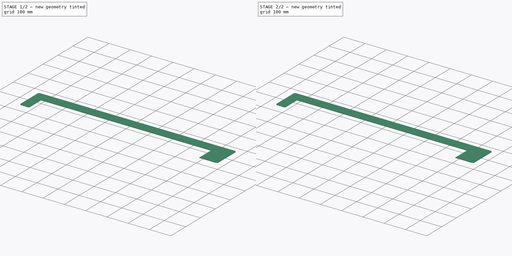
[diagram: build sequence overview — one tinted view per stage of 2, left to right]
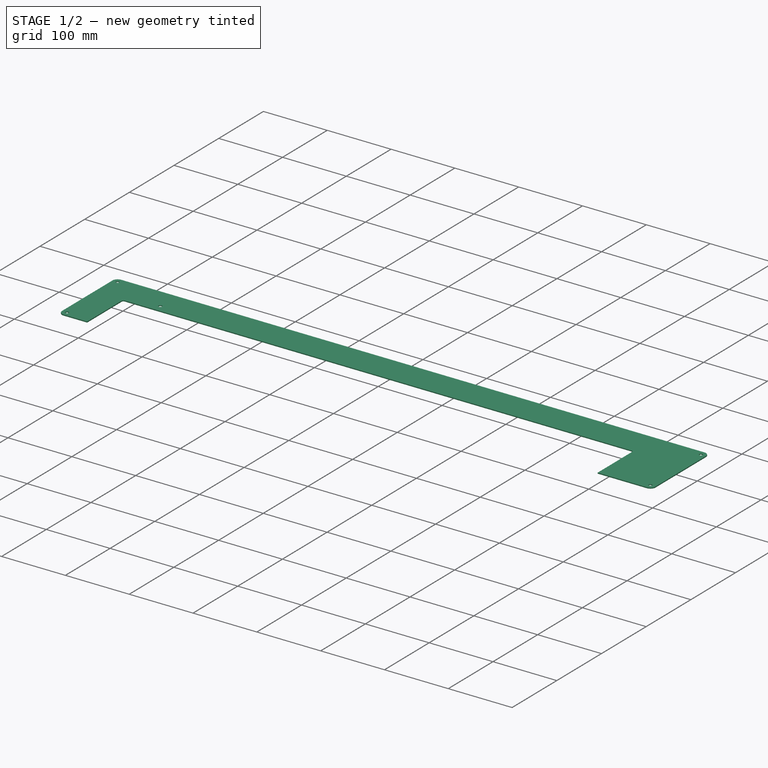
[diagram: stage 1 of 2 — iso view after this stage's code; geometry added in this stage tinted green]
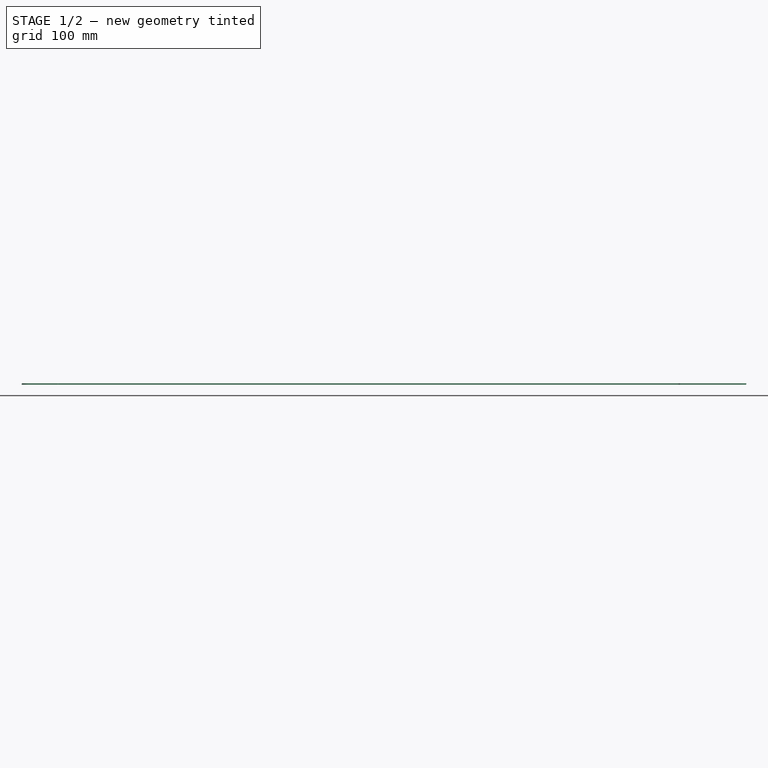
[diagram: stage 1 of 2 — front view after this stage's code; geometry added in this stage tinted green]
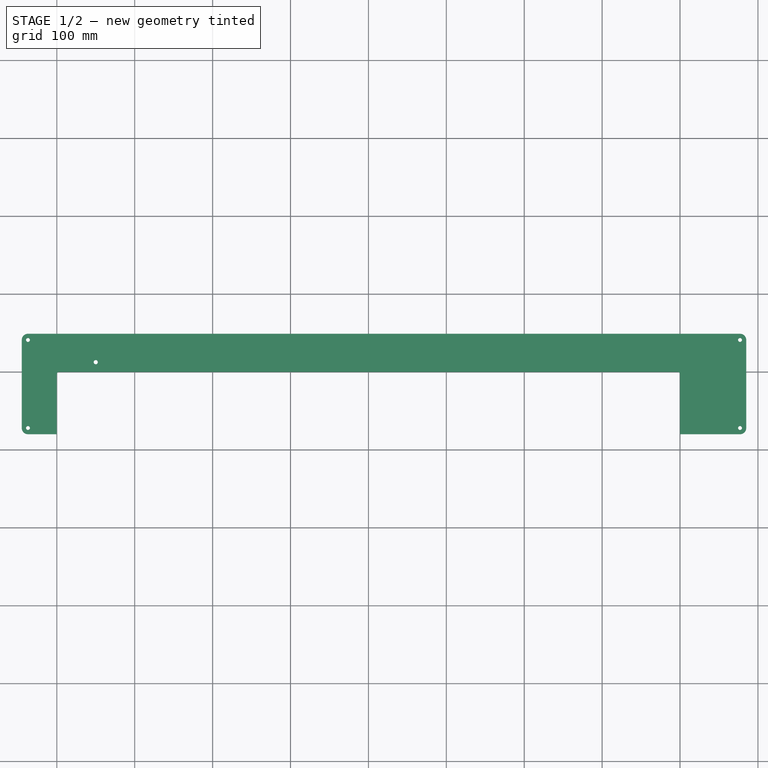
[diagram: stage 1 of 2 — top view after this stage's code; geometry added in this stage tinted green]
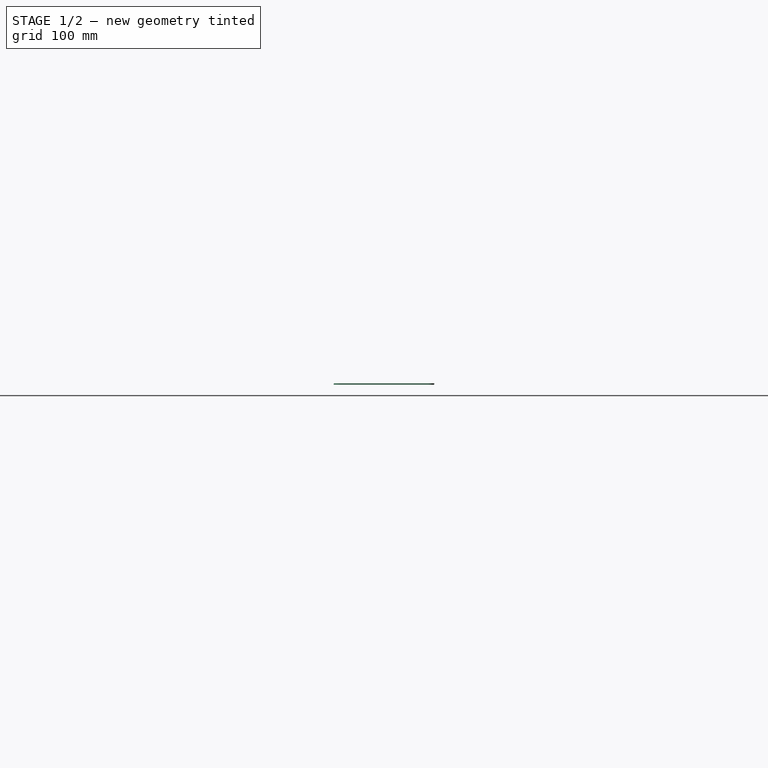
[diagram: stage 1 of 2 — right view after this stage's code; geometry added in this stage tinted green]
FCSTD DOCUMENT  (FreeCAD 0.21R38887 (Git))
Label: ЗащитаПраваяY
License: All rights reserved
LicenseURL: http://en.wikipedia.org/wiki/All_rights_reserved
objects: Sketcher::SketchObject×2, PartDesign::Pad×1, PartDesign::Hole×1, PartDesign::LinearPattern×1, PartDesign::Body×1
note: 14 computed .brp shape members not serialized (recipe doc carries the construction recipe); baked Part::Feature solids carry a one-line shape summary decoded from their .brp
EXTERNAL_REF file=ТаблицаПараметров.FCStd obj=Spreadsheet004

FEATURE [Sketcher::SketchObject] Sketch  label="Контур"
  ArcFitTolerance = 0
  ExternalBSplineMaxDegree = 0
  ExternalBSplineTolerance = 0
  FullyConstrained = true
  InternalTolerance = 1e-06
  InvalidShape = false
  MakeInternals = false
  MapMode = 5
  TreeRank = 0
  ValidateShape = false
  expr: Constraints[36] = <<ТаблицаПараметров>>#<<ЗащитаТабл>>.dimR4
  expr: Constraints[37] = <<ТаблицаПараметров>>#<<ЗащитаТабл>>.dimL2
  expr: Constraints[38] = <<ТаблицаПараметров>>#<<ЗащитаТабл>>.dimR2
  expr: Constraints[42] = <<ТаблицаПараметров>>#<<ЗащитаТабл>>.dimR1
  expr: Constraints[46] = <<ТаблицаПараметров>>#<<ЗащитаТабл>>.dimh2
  expr: Constraints[47] = <<ТаблицаПараметров>>#<<ЗащитаТабл>>.dimH1
  expr: Constraints[53] = <<ТаблицаПараметров>>#<<ЗащитаТабл>>.dimL1
  expr: Constraints[55] = <<ТаблицаПараметров>>#<<ЗащитаТабл>>.dimL1 + <<ТаблицаПараметров>>#<<ЗащитаТабл>>.dimL2 + <<ТаблицаПараметров>>#<<ЗащитаТабл>>.dimL3
  sketch-geometry (18):
    g0: LineSegment StartX=2.84e-14 StartY=-3 StartZ=0 EndX=2.84e-14 EndY=-80 EndZ=0
    g1: ArcOfCircle CenterX=3 CenterY=-3 CenterZ=0 NormalX=-1e-16 NormalY=0 NormalZ=1 AngleXU=-2e-16 Radius=3 StartAngle=1.5708 EndAngle=3.14159
    g2: LineSegment StartX=797 StartY=0 StartZ=0 EndX=3 EndY=0 EndZ=0
    g3: ArcOfCircle CenterX=797 CenterY=-3 CenterZ=0 NormalX=-1e-16 NormalY=0 NormalZ=1 AngleXU=-2e-16 Radius=3 StartAngle=-6.2e-15 EndAngle=1.5708
    g4: LineSegment StartX=800 StartY=-80 StartZ=0 EndX=800 EndY=-3 EndZ=0
    g5: LineSegment StartX=877 StartY=-80 StartZ=0 EndX=800 EndY=-80 EndZ=0
    g6: ArcOfCircle CenterX=877 CenterY=-72 CenterZ=0 NormalX=-1e-16 NormalY=0 NormalZ=1 AngleXU=-2e-16 Radius=8 StartAngle=4.71239 EndAngle=6.28319
    g7: LineSegment StartX=885 StartY=41 StartZ=0 EndX=885 EndY=-72 EndZ=0
    g8: ArcOfCircle CenterX=877 CenterY=41 CenterZ=0 NormalX=-1e-16 NormalY=0 NormalZ=1 AngleXU=-2e-16 Radius=8 StartAngle=3.05e-13 EndAngle=1.5708
    g9: LineSegment StartX=-37 StartY=49 StartZ=0 EndX=877 EndY=49 EndZ=0
    g10: ArcOfCircle CenterX=-37 CenterY=41 CenterZ=0 NormalX=-1e-16 NormalY=0 NormalZ=1 AngleXU=-2e-16 Radius=8 StartAngle=1.5708 EndAngle=3.14159
    g11: LineSegment StartX=-45 StartY=-72 StartZ=0 EndX=-45 EndY=41 EndZ=0
    g12: ArcOfCircle CenterX=-37 CenterY=-72 CenterZ=0 NormalX=-1e-16 NormalY=0 NormalZ=1 AngleXU=-2e-16 Radius=8 StartAngle=3.14159 EndAngle=4.71239
    g13: Circle CenterX=-37 CenterY=41 CenterZ=0 NormalX=0 NormalY=0 NormalZ=1 AngleXU=0 Radius=2.5
    g14: Circle CenterX=-37 CenterY=-72 CenterZ=0 NormalX=0 NormalY=0 NormalZ=1 AngleXU=0 Radius=2.5
    g15: Circle CenterX=877 CenterY=-72 CenterZ=0 NormalX=0 NormalY=0 NormalZ=1 AngleXU=0 Radius=2.5
    g16: Circle CenterX=877 CenterY=41 CenterZ=0 NormalX=0 NormalY=0 NormalZ=1 AngleXU=0 Radius=2.5
    g17: LineSegment StartX=-37 StartY=-80 StartZ=0 EndX=2.84e-14 EndY=-80 EndZ=0
  constraints (56):
    c: Vertical(g0)
    c: Coincident(g0,g1)
    c: Coincident(g1,g2)
    c: Coincident(g2,g3)
    c: Coincident(g3,g4)
    c: Vertical(g4)
    c: Coincident(g5,g6)
    c: Coincident(g6,g7)
    c: Vertical(g7)
    c: Coincident(g7,g8)
    c: Coincident(g8,g9)
    c: Coincident(g9,g10)
    c: Coincident(g10,g11)
    c: Vertical(g11)
    c: Coincident(g11,g12)
    c: Horizontal(g10,g10)
    c: Horizontal(g10,g8)
    c: Horizontal(g8,g7)
    c: Horizontal(g11,g12)
    c: Horizontal(g12,g6)
    c: Horizontal(g6,g6)
    c: Vertical(g12,g12)
    c: Vertical(g12,g10)
    c: Vertical(g10,g9)
    c: Vertical(g5,g6)
    c: Vertical(g6,g8)
    c: Vertical(g8,g8)
    c: Horizontal(g0,g1)
    c: Horizontal(g1,g3)
    c: Horizontal(g3,g3)
    c: Horizontal(g0,g4)
    c: Horizontal(g5)
    c: Horizontal(g9)
    c: Horizontal(g2)
    c: Vertical(g3,g2)
    c: Vertical(g1,g1)
    c: Radius(g3) = 3
    c: DistanceX(g0,g3) = 800
    c: Radius(g13) = 2.5
    c: Equal(g13,g14)
    c: Equal(g13,g15)
    c: Equal(g13,g16)
    c: Radius(g10) = 8
    c: Coincident(g12,g14)
    c: Coincident(g15,g6)
    c: Coincident(g8,g16)
    c: DistanceY(g5,g2) = 80
    c: DistanceY(g5,g8) = 129
    c: Coincident(g10,g13)
    c: PointOnObject(g1,g-1)
    c: PointOnObject(g0,g-2)
    c: Coincident(g17,g0)
    c: Coincident(g5,g4)
    c: DistanceX(g11,g0) = 45
    c: Coincident(g17,g12)
    c: DistanceX(g10,g7) = 930
FEATURE [Sketcher::SketchObject] Sketch001  label="КреплЗащиты"
  ArcFitTolerance = 0
  ExternalBSplineMaxDegree = 0
  ExternalBSplineTolerance = 0
  FullyConstrained = true
  InternalTolerance = 1e-06
  InvalidShape = false
  MakeInternals = false
  MapMode = 5
  Placement = pos=(0,0,2) rot=(0,0,1;0rad)
  TreeRank = 0
  ValidateShape = false
  expr: Constraints[0] = <<ТаблицаПараметров>>#<<ЗащитаТабл>>.dimR3
  expr: Constraints[1] = <<ТаблицаПараметров>>#<<ЗащитаТабл>>.dimH3
  expr: Constraints[2] = <<ТаблицаПараметров>>#<<ЗащитаТабл>>.dimL6
  sketch-geometry (1):
    g0: Circle CenterX=50 CenterY=12.5 CenterZ=0 NormalX=0 NormalY=0 NormalZ=1 AngleXU=0 Radius=2.65
  constraints (3):
    c: Radius(g0) = 2.65
    c: DistanceY(g-1,g0) = 12.5
    c: DistanceX(g-1,g0) = 50
FEATURE [PartDesign::Pad] Pad
  AddSubType = 0
  AlongSketchNormal = false
  AutoTaperInnerAngle = false
  CheckUpToFaceLimits = true
  ClaimChildren = false
  Direction = (0,0,1)
  Fit = 0
  FitJoin = 0
  InnerFit = 0
  InnerFitJoin = 0
  InvalidShape = false
  Length = 1.5
  Length2 = 100
  NewSolid = false
  Profile = -> Sketch
  Suppress = false
  TaperInnerAngle = 0
  TaperInnerAngleRev = 0
  TreeRank = 0
  Type = 0
  ValidateShape = true
  _ProfileBasedVersion = 0
  expr: Length = <<ТаблицаПараметров>>#<<ЗащитаТабл>>.toldhinZashita
FEATURE [PartDesign::Hole] Hole
  AddSubType = 1
  BaseFeature = -> Pad
  ClaimChildren = false
  CustomThreadClearance = 0
  Depth = 25
  DepthType = 0
  Diameter = 5.3
  DrillForDepth = false
  DrillPoint = 1
  DrillPointAngle = 118
  Fit = 0
  FitJoin = 0
  HoleCutCountersinkAngle = 90
  HoleCutCustomValues = false
  HoleCutDepth = 0
  HoleCutDiameter = 6.1
  HoleCutType = 0
  InnerFit = 0
  InnerFitJoin = 0
  InvalidShape = false
  ModelThread = false
  NewSolid = false
  Profile = -> Sketch001
  Suppress = false
  Tapered = false
  TaperedAngle = 90
  ThreadClass = 0
  ThreadDepth = 23.5
  ThreadDepthType = 0
  ThreadDirection = 0
  ThreadFit = 0
  ThreadSize = 0
  ThreadType = 0
  Threaded = false
  TreeRank = 0
  UseCustomThreadClearance = false
  ValidateShape = true
  _ProfileBasedVersion = 0
  expr: Diameter = <<ТаблицаПараметров>>#<<ЗащитаТабл>>.dimR3 * 2
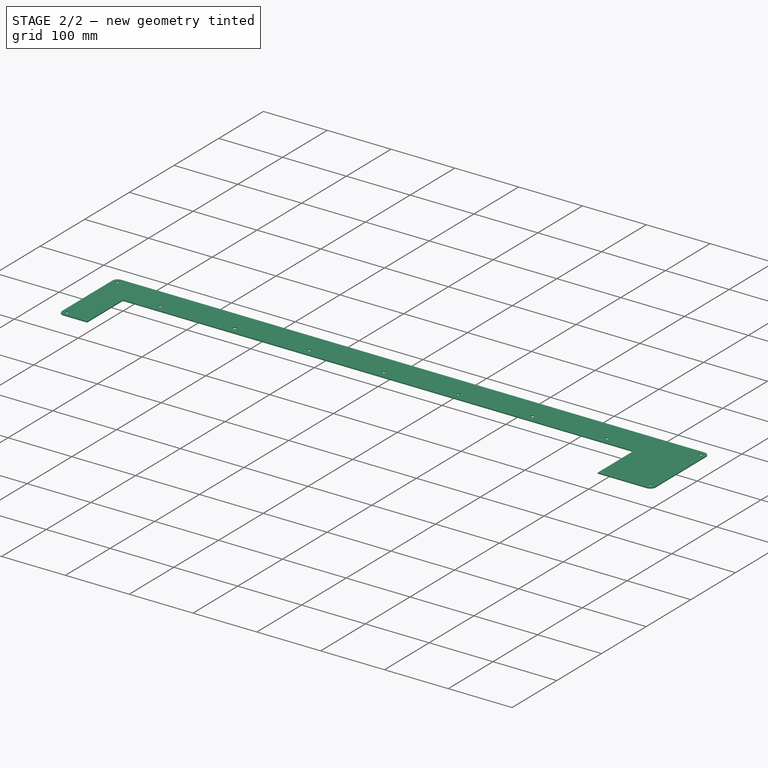
[diagram: stage 2 of 2 — iso view after this stage's code; geometry added in this stage tinted green]
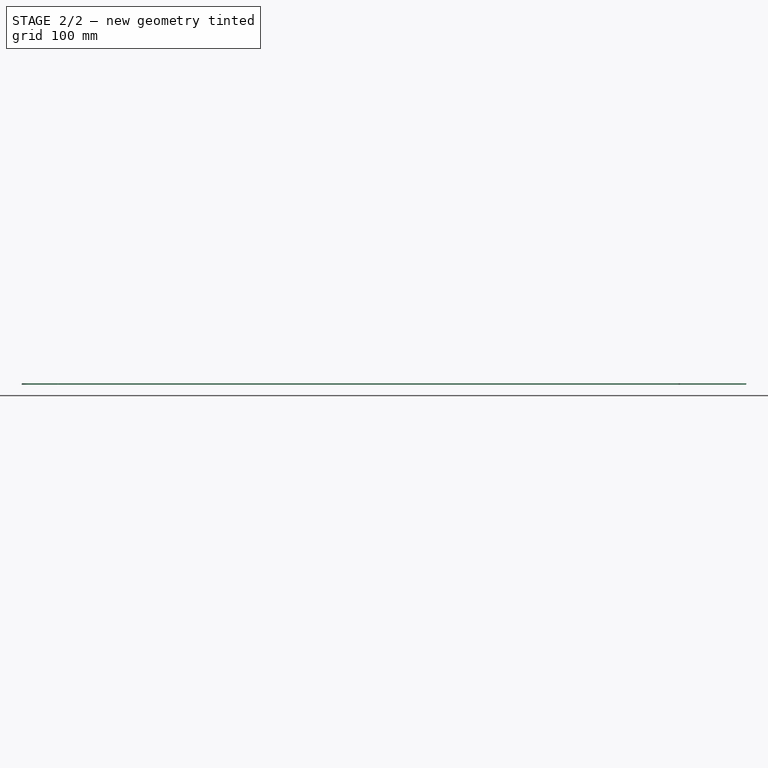
[diagram: stage 2 of 2 — front view after this stage's code; geometry added in this stage tinted green]
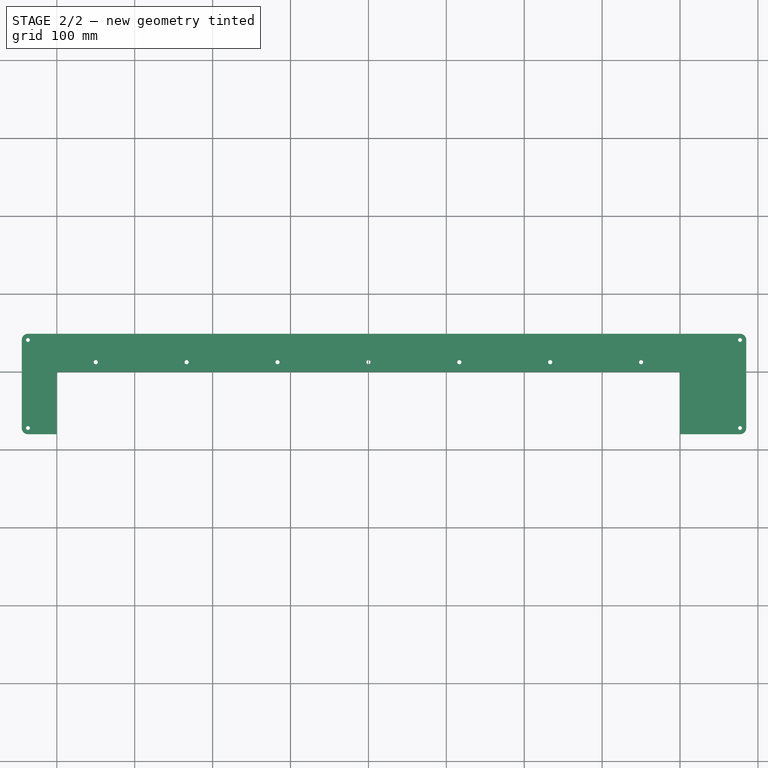
[diagram: stage 2 of 2 — top view after this stage's code; geometry added in this stage tinted green]
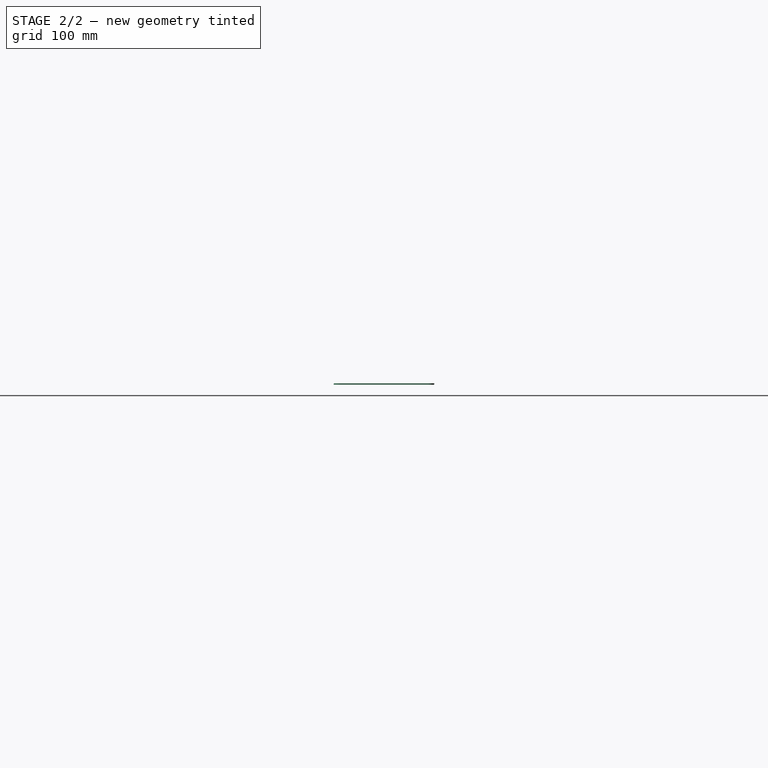
[diagram: stage 2 of 2 — right view after this stage's code; geometry added in this stage tinted green]
FEATURE [PartDesign::LinearPattern] LinearPattern
  AddSubType = 0
  BaseFeature = -> Hole
  CopyShape = false
  Direction = -> Sketch001 [H_Axis]
  InvalidShape = false
  Length = 700
  NewSolid = false
  Occurrences = 7
  OriginalSubs = -> [Hole]
  Originals = -> [Hole]
  ParallelTransform = true
  SubTransform = true
  Suppress = false
  TreeRank = 0
  ValidateShape = true
  _Siblings = -> [Hole,Pad]
  _Version = 0
  expr: Length = <<ТаблицаПараметров>>#<<ЗащитаТабл>>.dimL5
  expr: Occurrences = <<ТаблицаПараметров>>#<<ЗащитаТабл>>.num1
FEATURE [PartDesign::Body] Body  label="ЗащитаСправаY"
  AutoGroupSolids = true
  ClaimAllChildren = false
  ExportMode = 0
  Group = -> [Sketch,Sketch001,Pad,Hole,LinearPattern]
  InvalidShape = false
  Origin = -> Origin
  Tip = -> LinearPattern
  TreeRank = 0
  ValidateShape = false
  _ExportChildren = -> [LinearPattern]
  _GroupVersion = 1
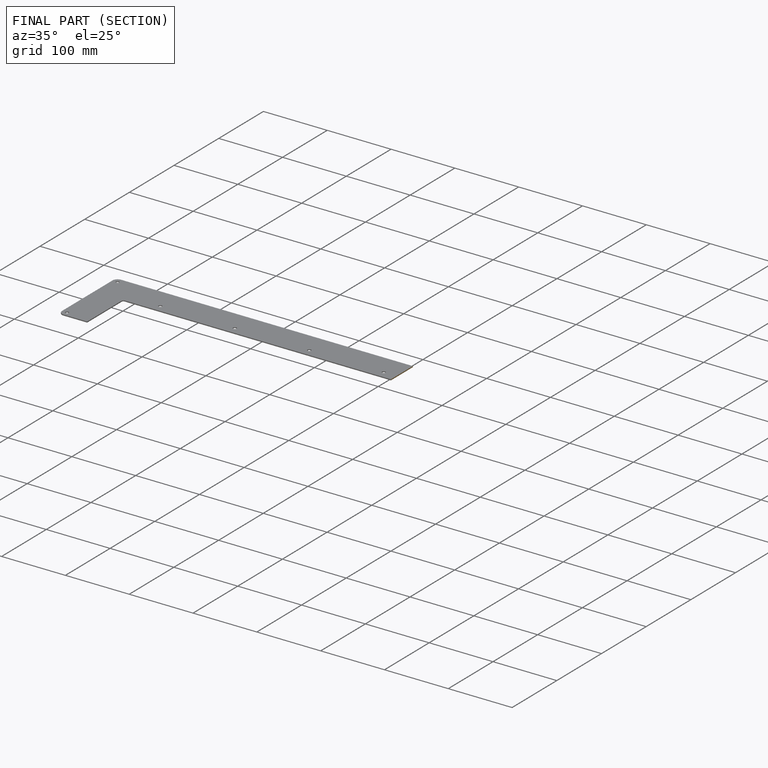
[diagram: finished part — half-section view (interior)]
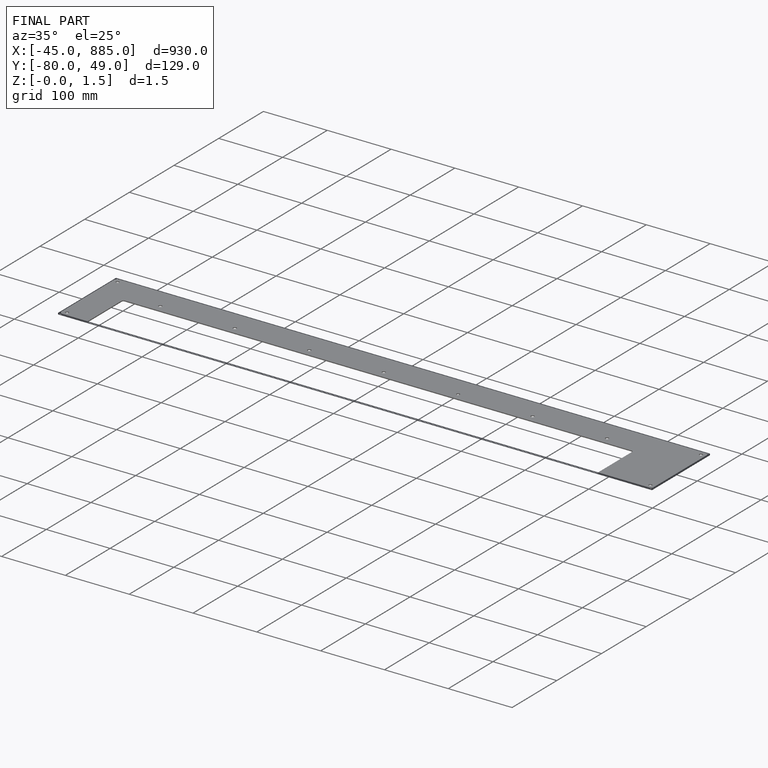
[diagram: finished part — iso view with bounding-box wireframe]
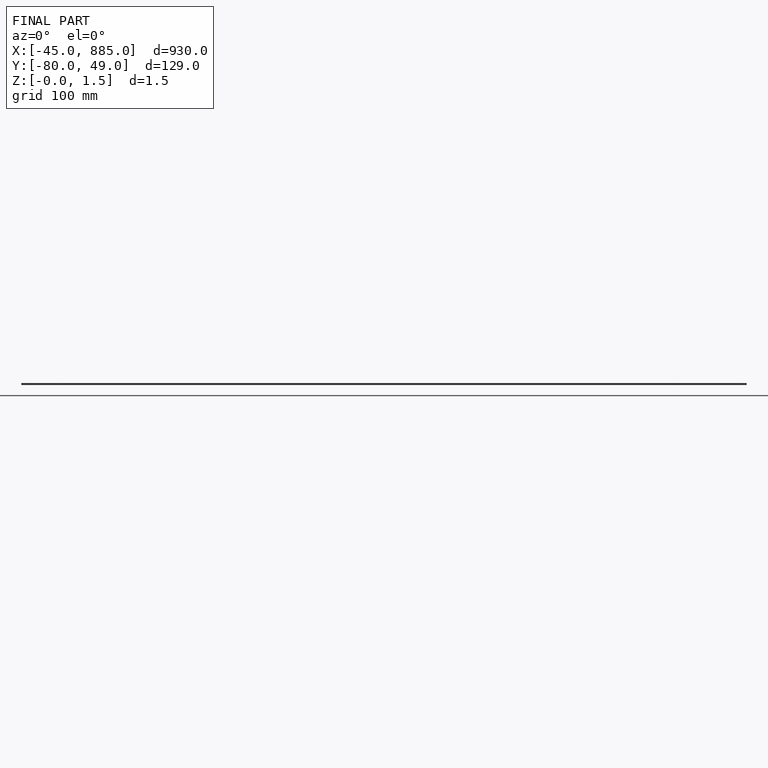
[diagram: finished part — front view with bounding-box wireframe]
